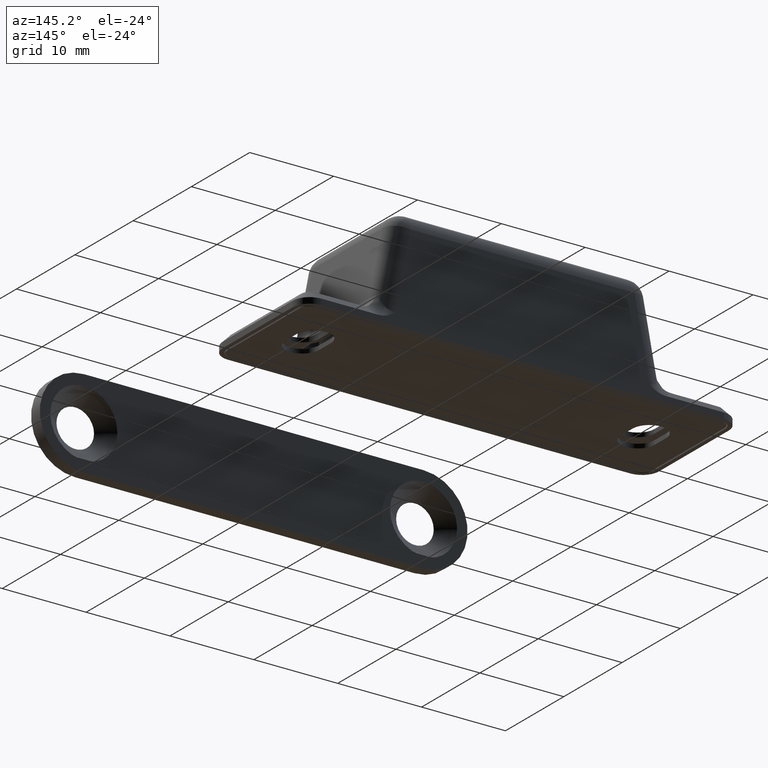
[diagram: clean part render]
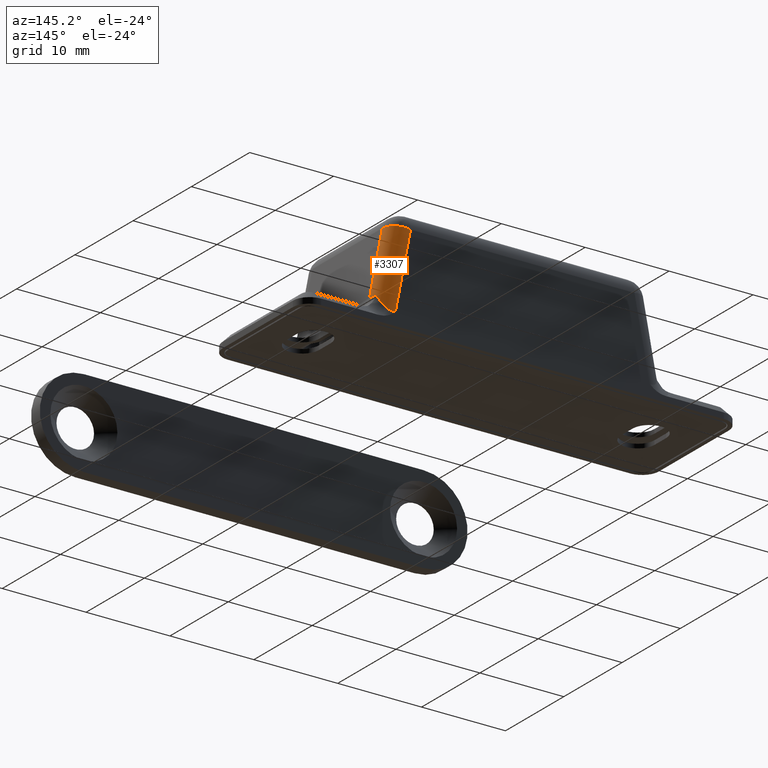
[diagram: same view with one face highlighted and labeled with its STEP entity id]
A machine part, auxiliary view. The second image highlights one B-rep face of the part: STEP entity #3307.
In plain terms, the highlighted cylindrical surface (edge-blend (fillet) strip) has radius 2 mm, axis along (0.1908, 0, -0.9816).
Its self-contained STEP definition (entity closure, byte-faithful):
#126=ELLIPSE('',#3569,4.60533153492509,2.);
#129=ELLIPSE('',#3575,2.14581902155977,2.);
#324=FACE_OUTER_BOUND('',#521,.T.);
#521=EDGE_LOOP('',(#2631,#2632,#2633,#2634,#2635));
#787=LINE('',#5409,#1083);
#809=LINE('',#5815,#1105);
#1083=VECTOR('',#4117,8.01040977073295);
#1105=VECTOR('',#4211,9.445106076515);
#1320=CIRCLE('',#3547,2.);
#1504=VERTEX_POINT('',#5383);
#1508=VERTEX_POINT('',#5399);
#1510=VERTEX_POINT('',#5407);
#1536=VERTEX_POINT('',#5644);
#1537=VERTEX_POINT('',#5655);
#1888=EDGE_CURVE('',#1508,#1504,#1320,.T.);
#1891=EDGE_CURVE('',#1508,#1510,#787,.T.);
#1926=EDGE_CURVE('',#1536,#1537,#126,.T.);
#1939=EDGE_CURVE('',#1537,#1510,#129,.T.);
#1953=EDGE_CURVE('',#1536,#1504,#809,.T.);
#2631=ORIENTED_EDGE('',*,*,#1888,.F.);
#2632=ORIENTED_EDGE('',*,*,#1891,.T.);
#2633=ORIENTED_EDGE('',*,*,#1939,.F.);
#2634=ORIENTED_EDGE('',*,*,#1926,.F.);
#2635=ORIENTED_EDGE('',*,*,#1953,.T.);
#3185=CYLINDRICAL_SURFACE('',#3584,2.);
#3307=ADVANCED_FACE('',(#324),#3185,.T.);
#3547=AXIS2_PLACEMENT_3D('',#5403,#4111,#4112);
#3569=AXIS2_PLACEMENT_3D('',#5656,#4168,#4169);
#3575=AXIS2_PLACEMENT_3D('',#5785,#4183,#4184);
#3584=AXIS2_PLACEMENT_3D('',#5814,#4209,#4210);
#4111=DIRECTION('center_axis',(-0.190808995376563,0.,0.98162718344766));
#4112=DIRECTION('ref_axis',(0.694115238012891,0.707106781186548,0.13492233454216));
#4117=DIRECTION('',(0.190808995376563,0.,-0.98162718344766));
#4168=DIRECTION('center_axis',(-0.0828643905132746,-0.884815077680864,-0.458514744684913));
#4169=DIRECTION('ref_axis',(0.251777030870389,0.426583154923028,-0.868697380370176));
#4183=DIRECTION('center_axis',(-0.177842579881568,0.,-0.984058949850601));
#4184=DIRECTION('ref_axis',(0.984058949850601,0.,-0.177842579881568));
#4209=DIRECTION('center_axis',(0.190808995376563,0.,-0.98162718344766));
#4210=DIRECTION('ref_axis',(0.694115238012892,0.707106781186548,0.13492233454216));
#4211=DIRECTION('',(-0.190808995376563,0.,0.98162718344766));
#5383=CARTESIAN_POINT('',(13.3513272283649,8.,10.8));
#5399=CARTESIAN_POINT('',(15.3145815952603,6.,11.1816179907531));
#5403=CARTESIAN_POINT('Origin',(13.3513272283649,6.,10.8));
#5407=CARTESIAN_POINT('',(16.8430398361684,6.,3.31838200924688));
#5409=CARTESIAN_POINT('',(15.3263100040908,6.,11.121280558003));
#5644=CARTESIAN_POINT('',(15.1535384300498,8.,1.5284271247462));
#5655=CARTESIAN_POINT('',(16.6095204685376,6.91421356237309,3.3605844472188));
#5656=CARTESIAN_POINT('Origin',(14.3760171934989,6.,5.5284271247462));
#5785=CARTESIAN_POINT('Origin',(14.7314274232429,6.,3.70000000000002));
#5814=CARTESIAN_POINT('Origin',(13.3630556371955,6.,10.7396625672498));
#5815=CARTESIAN_POINT('',(13.3630556371955,8.,10.7396625672498));